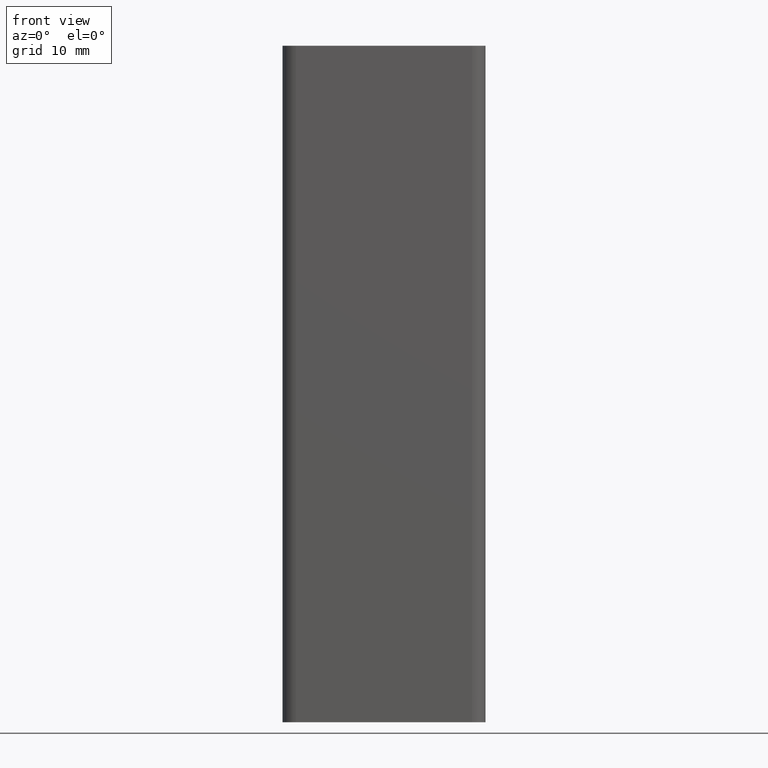
[diagram: clean part render]
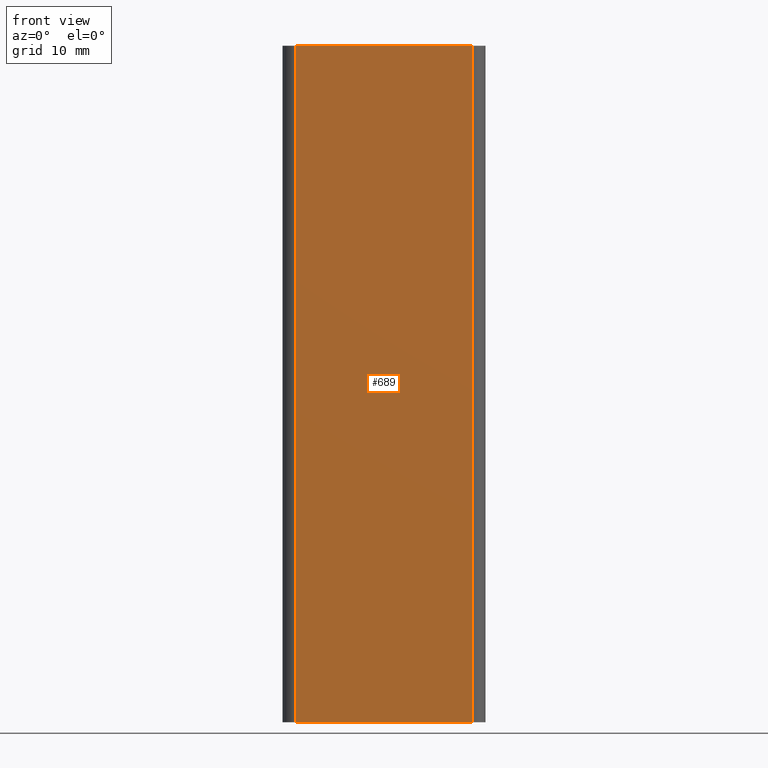
[diagram: same view with one face highlighted and labeled with its STEP entity id]
A machine part, front view. The second image highlights one B-rep face of the part: STEP entity #689.
In plain terms, the highlighted planar face has unit normal (-0, -1, 0).
Its self-contained STEP definition (entity closure, byte-faithful):
#63=FACE_OUTER_BOUND('',#100,.T.);
#100=EDGE_LOOP('',(#458,#459,#460,#461));
#137=LINE('',#1014,#210);
#138=LINE('',#1016,#211);
#139=LINE('',#1018,#212);
#140=LINE('',#1019,#213);
#210=VECTOR('',#801,26.0002071634832);
#211=VECTOR('',#802,100.);
#212=VECTOR('',#803,26.0002071634832);
#213=VECTOR('',#804,100.);
#283=VERTEX_POINT('',#1012);
#284=VERTEX_POINT('',#1013);
#285=VERTEX_POINT('',#1015);
#286=VERTEX_POINT('',#1017);
#353=EDGE_CURVE('',#283,#284,#137,.T.);
#354=EDGE_CURVE('',#283,#285,#138,.T.);
#355=EDGE_CURVE('',#286,#285,#139,.T.);
#356=EDGE_CURVE('',#284,#286,#140,.T.);
#458=ORIENTED_EDGE('',*,*,#353,.F.);
#459=ORIENTED_EDGE('',*,*,#354,.T.);
#460=ORIENTED_EDGE('',*,*,#355,.F.);
#461=ORIENTED_EDGE('',*,*,#356,.F.);
#668=PLANE('',#728);
#689=ADVANCED_FACE('',(#63),#668,.T.);
#728=AXIS2_PLACEMENT_3D('',#1011,#799,#800);
#799=DIRECTION('center_axis',(-5.80727416514913E-14,-1.,0.));
#800=DIRECTION('ref_axis',(1.,-5.80868686483882E-14,0.));
#801=DIRECTION('',(1.,-5.80727416514913E-14,0.));
#802=DIRECTION('',(0.,0.,-1.));
#803=DIRECTION('',(-1.,5.80727416514913E-14,0.));
#804=DIRECTION('',(0.,0.,-1.));
#1011=CARTESIAN_POINT('Origin',(-13.0001035817425,-14.9999999999992,0.));
#1012=CARTESIAN_POINT('',(-13.0001035817425,-14.9999999999992,100.));
#1013=CARTESIAN_POINT('',(13.0001035817407,-15.0000000000008,100.));
#1014=CARTESIAN_POINT('',(-6.50005179087166,-14.9999999999996,100.));
#1015=CARTESIAN_POINT('',(-13.0001035817425,-14.9999999999992,0.));
#1016=CARTESIAN_POINT('',(-13.0001035817425,-14.9999999999992,0.));
#1017=CARTESIAN_POINT('',(13.0001035817407,-15.0000000000008,0.));
#1018=CARTESIAN_POINT('',(-6.50005179087166,-14.9999999999996,0.));
#1019=CARTESIAN_POINT('',(13.0001035817407,-15.0000000000008,0.));